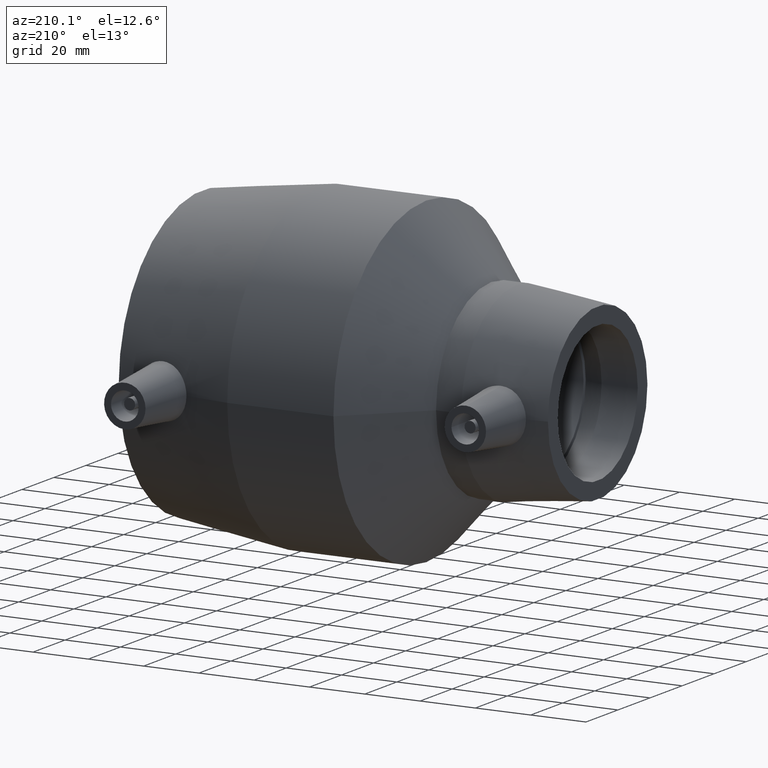
[diagram: clean part render]
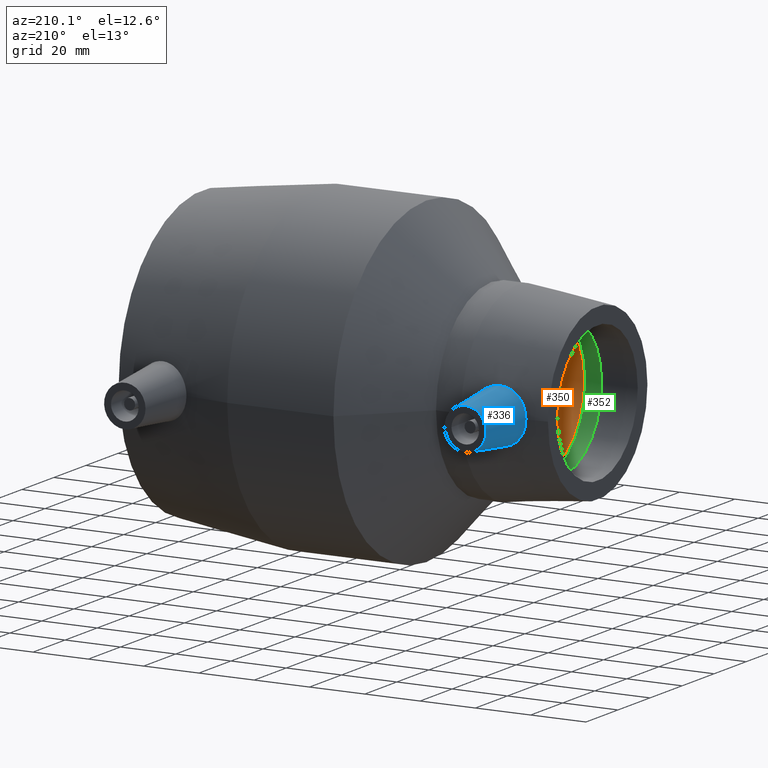
[diagram: same view with three faces highlighted in distinct colors, each labeled with its STEP entity id]
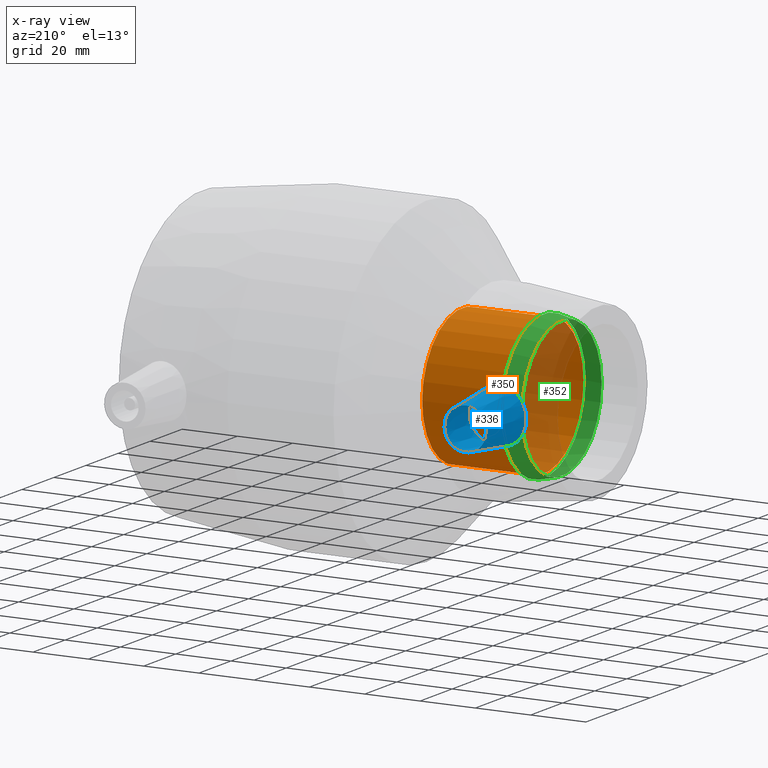
[diagram: x-ray of the same camera — body ghosted, the three highlighted faces saturated]
A machine part, auxiliary view with three faces highlighted in distinct colors.
The next image is the same camera in x-ray (body ghosted, the three faces saturated) — at least one of them is partly hidden behind the body in this view.
Their STEP definitions:

[orange] entity #350 — the highlighted cylindrical surface (bore or boss wall) has radius 25 mm, axis along (1, 0, 0).
#49=FACE_BOUND('',#148,.T.);
#65=CYLINDRICAL_SURFACE('',#407,25.);
#92=FACE_OUTER_BOUND('',#147,.T.);
#147=EDGE_LOOP('',(#300));
#148=EDGE_LOOP('',(#301));
#183=CIRCLE('',#406,25.);
#184=CIRCLE('',#408,25.);
#214=VERTEX_POINT('',#682);
#215=VERTEX_POINT('',#685);
#245=EDGE_CURVE('',#214,#214,#183,.T.);
#246=EDGE_CURVE('',#215,#215,#184,.T.);
#300=ORIENTED_EDGE('',*,*,#246,.F.);
#301=ORIENTED_EDGE('',*,*,#245,.T.);
#350=ADVANCED_FACE('',(#92,#49),#65,.F.);
#406=AXIS2_PLACEMENT_3D('',#683,#516,#517);
#407=AXIS2_PLACEMENT_3D('',#684,#518,#519);
#408=AXIS2_PLACEMENT_3D('',#686,#520,#521);
#516=DIRECTION('center_axis',(1.,1.83697019872103E-16,0.));
#517=DIRECTION('ref_axis',(0.,0.,-1.));
#518=DIRECTION('center_axis',(1.,1.83697019872103E-16,0.));
#519=DIRECTION('ref_axis',(-2.04658941435775E-16,1.,0.));
#520=DIRECTION('center_axis',(1.,1.83697019872103E-16,0.));
#521=DIRECTION('ref_axis',(0.,0.,-1.));
#682=CARTESIAN_POINT('',(-22.5,25.,0.));
#683=CARTESIAN_POINT('Origin',(-22.5,9.00115397373305E-15,0.));
#684=CARTESIAN_POINT('Origin',(-37.2,6.30080778161313E-15,0.));
#685=CARTESIAN_POINT('',(-51.9,25.,0.));
#686=CARTESIAN_POINT('Origin',(-51.9,3.60046158949322E-15,0.));

[blue] entity #336 — the highlighted conical surface has half-angle 6 deg.
#16=B_SPLINE_CURVE_WITH_KNOTS('',3,(#609,#610,#611,#612,#613,#614,#615,
#616,#617,#618,#619,#620,#621,#622,#623,#624,#625,#626,#627,#628,#629,#630,
#631,#632,#633,#634,#635,#636,#637,#638,#639,#640,#641,#642),
 .UNSPECIFIED.,.T.,.F.,(4,2,2,2,2,2,2,2,2,2,2,2,2,2,2,2,4),(0.,0.355420587912925,
0.71084117582585,1.06929453644198,1.42774789705811,1.78620125767424,2.14465461829037,
2.50007520620329,2.85549579411622,3.23977720801927,3.62405862192233,3.99812455984556,
4.37219049776879,4.74625643569202,5.12032237361525,5.50460378751831,5.88888520142137),
 .UNSPECIFIED.);
#18=CONICAL_SURFACE('',#379,7.5,6.);
#34=FACE_BOUND('',#119,.T.);
#78=FACE_OUTER_BOUND('',#118,.T.);
#118=EDGE_LOOP('',(#271));
#119=EDGE_LOOP('',(#272));
#169=CIRCLE('',#378,7.5);
#199=VERTEX_POINT('',#605);
#200=VERTEX_POINT('',#608);
#230=EDGE_CURVE('',#199,#199,#169,.T.);
#231=EDGE_CURVE('',#200,#200,#16,.T.);
#271=ORIENTED_EDGE('',*,*,#230,.T.);
#272=ORIENTED_EDGE('',*,*,#231,.F.);
#336=ADVANCED_FACE('',(#78,#34),#18,.T.);
#378=AXIS2_PLACEMENT_3D('',#606,#460,#461);
#379=AXIS2_PLACEMENT_3D('',#607,#462,#463);
#460=DIRECTION('center_axis',(0.,-1.,0.));
#461=DIRECTION('ref_axis',(1.,0.,0.));
#462=DIRECTION('center_axis',(0.,-1.,0.));
#463=DIRECTION('ref_axis',(1.,0.,0.));
#605=CARTESIAN_POINT('',(-61.84,53.,9.18485099360515E-16));
#606=CARTESIAN_POINT('Origin',(-54.34,53.,0.));
#607=CARTESIAN_POINT('Origin',(-54.34,53.,0.));
#608=CARTESIAN_POINT('',(-54.7925513816312,31.5393494719391,9.74510293819588));
#609=CARTESIAN_POINT('Ctrl Pts',(-54.7925513816311,31.5393494719391,9.74510293819588));
#610=CARTESIAN_POINT('Ctrl Pts',(-55.9692128809915,31.4074257051822,9.70434082012543));
#611=CARTESIAN_POINT('Ctrl Pts',(-57.2210164027978,31.3426379301735,9.42624689731546));
#612=CARTESIAN_POINT('Ctrl Pts',(-59.5103285136098,31.3578267998131,8.38992720253589));
#613=CARTESIAN_POINT('Ctrl Pts',(-60.5479757275388,31.4332587929731,7.63194605664765));
#614=CARTESIAN_POINT('Ctrl Pts',(-62.1826854136346,31.6068732380291,5.91148611043436));
#615=CARTESIAN_POINT('Ctrl Pts',(-62.8897574183039,31.7165928779218,4.8290488606426));
#616=CARTESIAN_POINT('Ctrl Pts',(-63.8260681344326,31.8766957367258,2.47086269640582));
#617=CARTESIAN_POINT('Ctrl Pts',(-64.0552165340982,31.9236225495701,1.1948445353871));
#618=CARTESIAN_POINT('Ctrl Pts',(-64.0552165340982,31.9236225495701,-1.1948445353871));
#619=CARTESIAN_POINT('Ctrl Pts',(-63.8260681344326,31.8766957367258,-2.47086269640581));
#620=CARTESIAN_POINT('Ctrl Pts',(-62.8897574183039,31.7165928779218,-4.8290488606426));
#621=CARTESIAN_POINT('Ctrl Pts',(-62.1826854136346,31.6068732380291,-5.91148611043436));
#622=CARTESIAN_POINT('Ctrl Pts',(-60.5479757275388,31.4332587929731,-7.63194605664765));
#623=CARTESIAN_POINT('Ctrl Pts',(-59.5103285136098,31.3578267998131,-8.38992720253589));
#624=CARTESIAN_POINT('Ctrl Pts',(-57.2210164027978,31.3426379301735,-9.42624689731546));
#625=CARTESIAN_POINT('Ctrl Pts',(-55.9692128809915,31.4074257051822,-9.70434082012543));
#626=CARTESIAN_POINT('Ctrl Pts',(-53.5203427363338,31.681985698823,-9.78917501758154));
#627=CARTESIAN_POINT('Ctrl Pts',(-52.175531319819,31.9203811246033,-9.56354415514665));
#628=CARTESIAN_POINT('Ctrl Pts',(-49.7158338574257,32.4977055584017,-8.5783465148834));
#629=CARTESIAN_POINT('Ctrl Pts',(-48.5995381822017,32.8316400475828,-7.81937923796612));
#630=CARTESIAN_POINT('Ctrl Pts',(-46.8609322682247,33.4051004108174,-6.07631027167128));
#631=CARTESIAN_POINT('Ctrl Pts',(-46.1118350725389,33.6845925320686,-4.98272192013953));
#632=CARTESIAN_POINT('Ctrl Pts',(-45.1118069538735,34.0717327753991,-2.56841655667207));
#633=CARTESIAN_POINT('Ctrl Pts',(-44.861512095592,34.1759450091907,-1.24688645974411));
#634=CARTESIAN_POINT('Ctrl Pts',(-44.861512095592,34.1759450091907,1.2468864597441));
#635=CARTESIAN_POINT('Ctrl Pts',(-45.1118069538734,34.0717327753991,2.56841655667207));
#636=CARTESIAN_POINT('Ctrl Pts',(-46.1118350725389,33.6845925320686,4.98272192013952));
#637=CARTESIAN_POINT('Ctrl Pts',(-46.8609322682247,33.4051004108174,6.07631027167127));
#638=CARTESIAN_POINT('Ctrl Pts',(-48.5995381822017,32.8316400475828,7.81937923796612));
#639=CARTESIAN_POINT('Ctrl Pts',(-49.7158338574257,32.4977055584017,8.5783465148834));
#640=CARTESIAN_POINT('Ctrl Pts',(-52.175531319819,31.9203811246033,9.56354415514665));
#641=CARTESIAN_POINT('Ctrl Pts',(-53.5203427363338,31.681985698823,9.78917501758154));
#642=CARTESIAN_POINT('Ctrl Pts',(-54.7925513816312,31.5393494719391,9.74510293819588));

[green] entity #352 — the highlighted conical surface has half-angle 12 deg.
#23=CONICAL_SURFACE('',#411,25.6943514347887,12.);
#51=FACE_BOUND('',#152,.T.);
#94=FACE_OUTER_BOUND('',#151,.T.);
#151=EDGE_LOOP('',(#304));
#152=EDGE_LOOP('',(#305));
#185=CIRCLE('',#410,26.3887028695775);
#186=CIRCLE('',#412,25.);
#216=VERTEX_POINT('',#688);
#217=VERTEX_POINT('',#691);
#247=EDGE_CURVE('',#216,#216,#185,.T.);
#248=EDGE_CURVE('',#217,#217,#186,.T.);
#304=ORIENTED_EDGE('',*,*,#248,.F.);
#305=ORIENTED_EDGE('',*,*,#247,.T.);
#352=ADVANCED_FACE('',(#94,#51),#23,.F.);
#410=AXIS2_PLACEMENT_3D('',#689,#524,#525);
#411=AXIS2_PLACEMENT_3D('',#690,#526,#527);
#412=AXIS2_PLACEMENT_3D('',#692,#528,#529);
#524=DIRECTION('center_axis',(1.,1.83697019872103E-16,0.));
#525=DIRECTION('ref_axis',(0.,0.,-1.));
#526=DIRECTION('center_axis',(1.,1.83697019872103E-16,0.));
#527=DIRECTION('ref_axis',(-2.04658941435775E-16,1.,0.));
#528=DIRECTION('center_axis',(1.,1.83697019872103E-16,0.));
#529=DIRECTION('ref_axis',(0.,0.,-1.));
#688=CARTESIAN_POINT('',(-51.9,26.3887028695775,0.));
#689=CARTESIAN_POINT('Origin',(-51.9,3.60046158949322E-15,0.));
#690=CARTESIAN_POINT('Origin',(-55.1666666666667,3.00038465791102E-15,0.));
#691=CARTESIAN_POINT('',(-58.4333333333333,25.,0.));
#692=CARTESIAN_POINT('Origin',(-58.4333333333333,2.40030772632881E-15,0.));